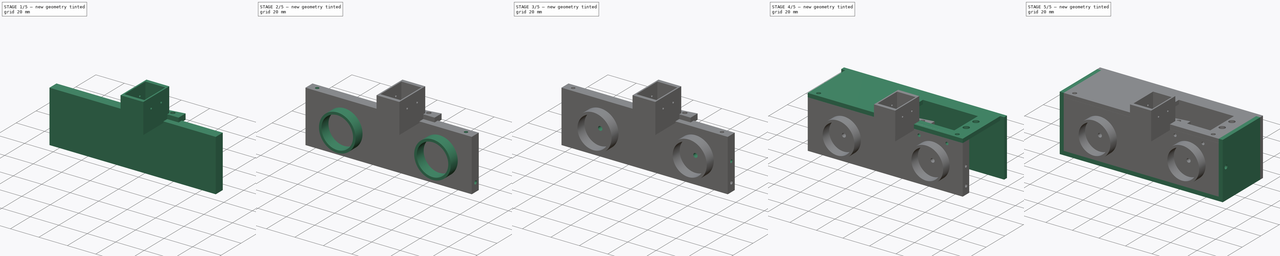
[diagram: build sequence overview — one tinted view per stage of 5, left to right]
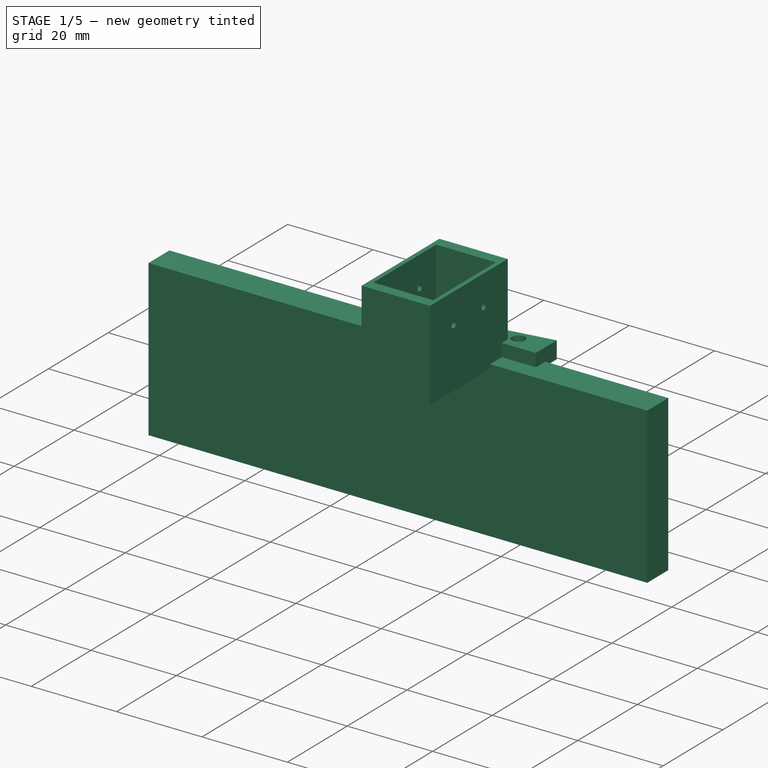
[diagram: stage 1 of 5 — iso view after this stage's code; geometry added in this stage tinted green]
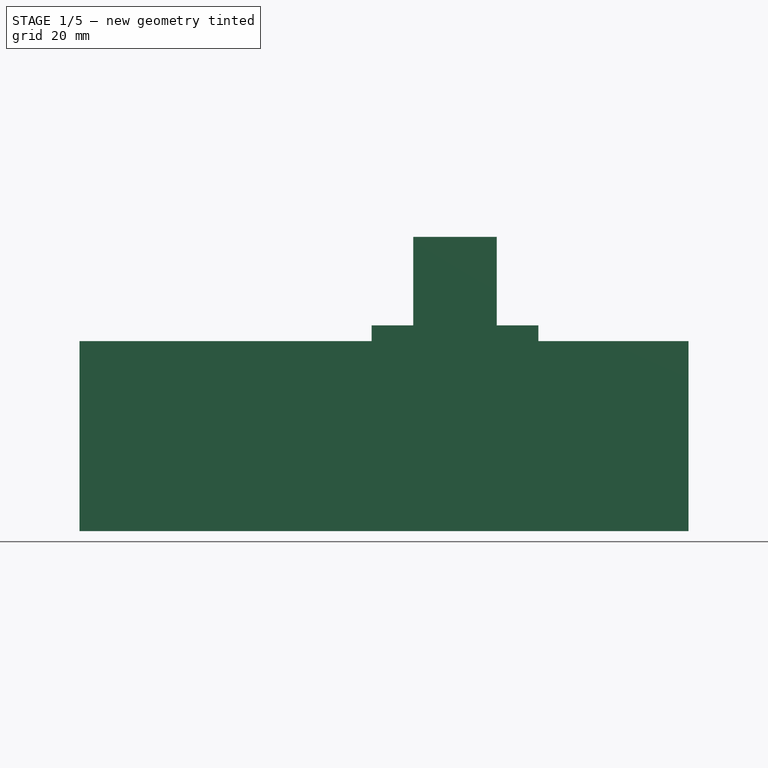
[diagram: stage 1 of 5 — front view after this stage's code; geometry added in this stage tinted green]
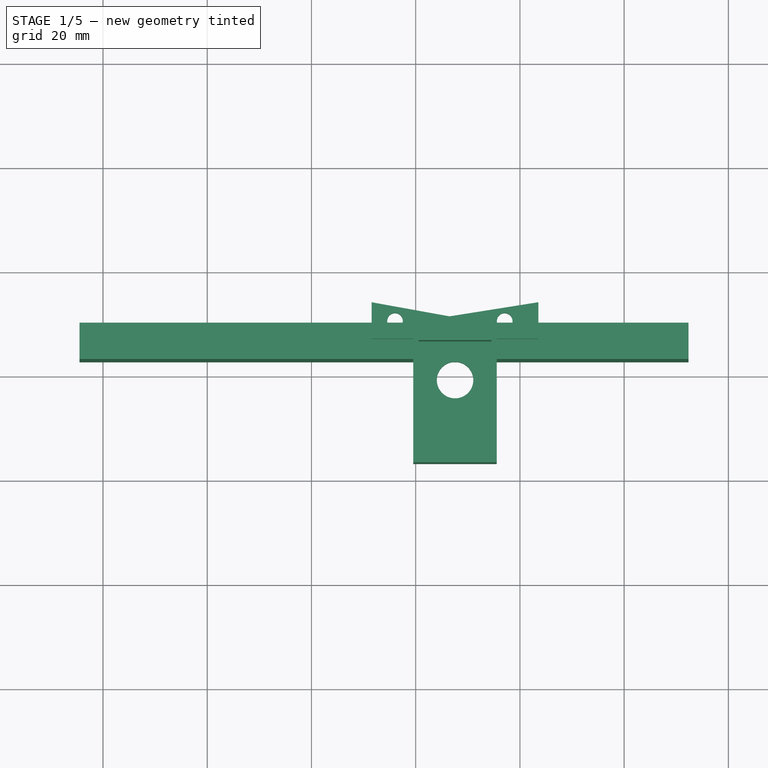
[diagram: stage 1 of 5 — top view after this stage's code; geometry added in this stage tinted green]
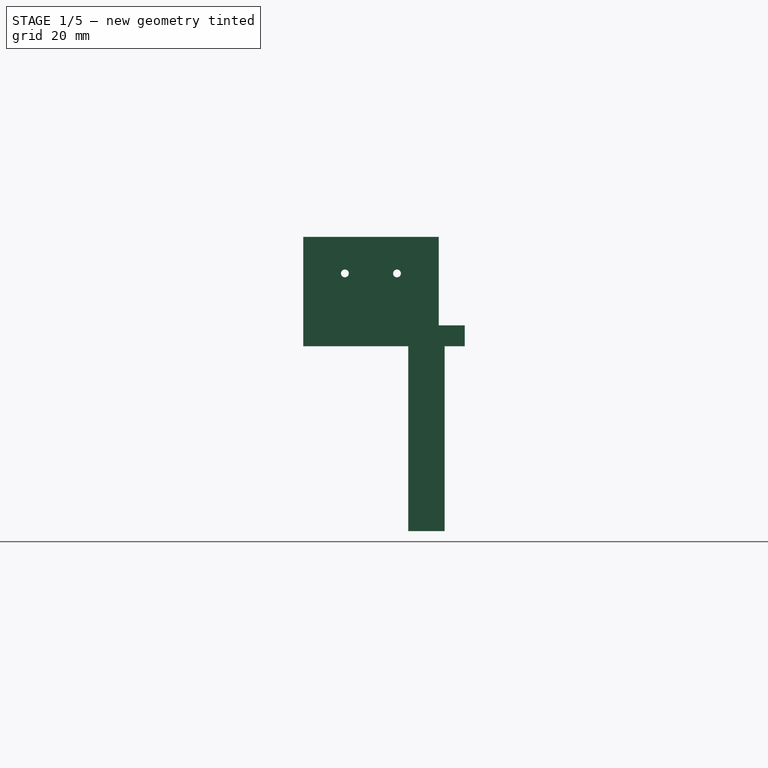
[diagram: stage 1 of 5 — right view after this stage's code; geometry added in this stage tinted green]
FCSTD DOCUMENT  (FreeCAD 0.21R33694 (Git))
Label: servo_box_full
License: All rights reserved
LicenseURL: http://en.wikipedia.org/wiki/All_rights_reserved
objects: Sketcher::SketchObject×22, PartDesign::Pad×11, PartDesign::Hole×10, PartDesign::Body×5, App::MeasureDistance×2, PartDesign::Pocket×1, App::Part×1
note: 71 computed .brp shape members not serialized (recipe doc carries the construction recipe); baked Part::Feature solids carry a one-line shape summary decoded from their .brp

FEATURE [App::MeasureDistance] Distance  label="Distance: 67,48 mm"
  Distance = 67.477
  P1 = (-37.7693,-15.2188,-17.7804)
  P2 = (29.7075,-15.2188,-17.661)
FEATURE [App::MeasureDistance] Distance001  label="Distance: 26,32 mm"
  Distance = 26.3166
  P1 = (-37.5966,-15.2188,-17.554)
  P2 = (-63.9131,-15.2188,-17.6073)
FEATURE [Sketcher::SketchObject] Sketch001  label="side_partition"
  FullyConstrained = false
  MapMode = 5
  Placement = pos=(0,-10.2188,-1e-15) rot=(0,0.707107,-0.707107;3.14159rad)
  sketch-geometry (4):
    g0: LineSegment StartX=-52.3398 StartY=35.4819 StartZ=0 EndX=64.5033 EndY=35.4819 EndZ=0
    g1: LineSegment StartX=-52.3398 StartY=-0.974658 StartZ=0 EndX=64.5033 EndY=-0.974658 EndZ=0
    g2: LineSegment StartX=64.5033 StartY=35.4819 StartZ=0 EndX=64.5033 EndY=-0.974658 EndZ=0
    g3: LineSegment StartX=-52.3398 StartY=35.4819 StartZ=0 EndX=-52.3398 EndY=-0.974658 EndZ=0
  constraints (8):
    c: Horizontal(g0)
    c: Horizontal(g1)
    c: Coincident(g2,g0)
    c: Coincident(g2,g1)
    c: Vertical(g2)
    c: Coincident(g3,g0)
    c: Coincident(g3,g1)
    c: Vertical(g3)
FEATURE [PartDesign::Pad] Pad001  label="side_partition001"
  Direction = (0,-1,-2e-16)
  Length = 7
  Length2 = 10
  Placement = pos=(0,-10.2188,-1e-15) rot=(0,0.707107,-0.707107;3.14159rad)
  Profile = -> Sketch001
  ReferenceAxis = -> Sketch001 [N_Axis]
  Type = 0
FEATURE [Sketcher::SketchObject] Sketch039  label="base"
  FullyConstrained = false
  MapMode = 5
  Support = -> [XY_Plane006]
  sketch-geometry (12):
    g0: LineSegment StartX=15.5352 StartY=-13.3626 StartZ=0 EndX=15.5352 EndY=-37.3626 EndZ=0
    g1: LineSegment StartX=15.5352 StartY=-37.3626 StartZ=0 EndX=-0.464761 EndY=-37.3626 EndZ=0
    g2: LineSegment StartX=-0.464761 StartY=-37.3626 StartZ=0 EndX=-0.464761 EndY=-13.3626 EndZ=0
    g3: Circle CenterX=-3.96812 CenterY=-9.94508 CenterZ=0 NormalX=0 NormalY=0 NormalZ=1 AngleXU=0 Radius=1.5
    g4: Circle CenterX=17.0748 CenterY=-9.94508 CenterZ=0 NormalX=0 NormalY=0 NormalZ=1 AngleXU=0 Radius=1.5
    g5: Circle CenterX=7.55557 CenterY=-21.3054 CenterZ=0 NormalX=0 NormalY=0 NormalZ=1 AngleXU=0 Radius=3.5
    g6: LineSegment StartX=-8.46476 StartY=-13.3626 StartZ=0 EndX=-0.464761 EndY=-13.3626 EndZ=0
    g7: LineSegment StartX=15.5352 StartY=-13.3626 StartZ=0 EndX=23.5352 EndY=-13.3626 EndZ=0
    g8: LineSegment StartX=-8.46476 StartY=-13.3626 StartZ=0 EndX=-8.46476 EndY=-6.36255 EndZ=0
    g9: LineSegment StartX=-8.46476 StartY=-6.36255 StartZ=0 EndX=6.47425 EndY=-9.07488 EndZ=0
    g10: LineSegment StartX=23.5352 StartY=-13.3626 StartZ=0 EndX=23.5352 EndY=-6.36255 EndZ=0
    g11: LineSegment StartX=6.47425 StartY=-9.07488 StartZ=0 EndX=23.5352 EndY=-6.36255 EndZ=0
  constraints (25):
    c: Coincident(g0,g1)
    c: Coincident(g1,g2)
    c: Horizontal(g1)
    c: Vertical(g0)
    c: Vertical(g2)
    c: Diameter(g3) = 3
    c: Diameter(g5) = 7
    c: Horizontal(g6)
    c: Distance(g1) = 16
    c: Coincident(g6,g2)
    c: Coincident(g7,g0)
    c: Horizontal(g7)
    c: Distance(g6) = 8
    c: Distance(g7) = 8
    c: Coincident(g8,g6)
    c: Vertical(g8)
    c: Distance(g8) = 7
    c: Coincident(g9,g8)
    c: Coincident(g10,g7)
    c: Vertical(g10)
    c: Distance(g10) = 7
    c: Coincident(g11,g9)
    c: Coincident(g11,g10)
    c: Distance(g2) = 24
    c: Distance(g0) = 24
FEATURE [PartDesign::Pad] Pad012  label="base_push"
  Direction = (0,0,1)
  Length = 4
  Length2 = 10
  Profile = -> Sketch039
  ReferenceAxis = -> Sketch039 [N_Axis]
  Type = 0
FEATURE [Sketcher::SketchObject] Sketch040  label="peregorodka"
  AttachmentOffset = pos=(0,-20,0) rot=(0,0,1;0rad)
  FullyConstrained = false
  MapMode = 5
  Placement = pos=(0,-20,4) rot=(0,0,1;0rad)
  Support = -> [Pad012]
  sketch-geometry (8):
    g0: LineSegment StartX=15.5428 StartY=8.63832 StartZ=0 EndX=15.5428 EndY=-17.3617 EndZ=0
    g1: LineSegment StartX=15.5428 StartY=-17.3617 StartZ=0 EndX=-0.457234 EndY=-17.3617 EndZ=0
    g2: LineSegment StartX=0.552107 StartY=6.09767 StartZ=0 EndX=14.5521 EndY=6.09767 EndZ=0
    g3: LineSegment StartX=14.5521 StartY=6.09767 StartZ=0 EndX=14.5521 EndY=-14.9023 EndZ=0
    g4: LineSegment StartX=14.5521 StartY=-14.9023 StartZ=0 EndX=0.552107 EndY=-14.9023 EndZ=0
    g5: LineSegment StartX=0.552107 StartY=-14.9023 StartZ=0 EndX=0.552107 EndY=6.09767 EndZ=0
    g6: LineSegment StartX=15.5428 StartY=8.63832 StartZ=0 EndX=-0.457234 EndY=8.63832 EndZ=0
    g7: LineSegment StartX=-0.457234 StartY=-17.3617 StartZ=0 EndX=-0.457234 EndY=8.63832 EndZ=0
  constraints (19):
    c: Coincident(g0,g1)
    c: Horizontal(g1)
    c: Vertical(g0)
    c: Distance(g1) = 16
    c: Coincident(g2,g3)
    c: Coincident(g3,g4)
    c: Coincident(g4,g5)
    c: Coincident(g5,g2)
    c: Horizontal(g2)
    c: Horizontal(g4)
    c: Vertical(g3)
    c: Vertical(g5)
    c: Distance(g2) = 14
    c: Distance(g5) = 21
    c: Coincident(g6,g0)
    c: Horizontal(g6)
    c: Coincident(g7,g1)
    c: Coincident(g7,g6)
    c: Vertical(g7)
FEATURE [PartDesign::Pad] Pad013
  BaseFeature = -> Pad012
  Direction = (0,0,1)
  Length = 17
  Length2 = 10
  Profile = -> Sketch040
  ReferenceAxis = -> Sketch040 [N_Axis]
  Type = 0
FEATURE [PartDesign::Body] Body  label="krepeg"
  Group = -> [Sketch001,Pad001,Sketch003,Pad002,Sketch004,Pad003,Sketch032,Hole,Sketch033,Hole012,Sketch034,Hole013,Sketch035,Hole014,Sketch036,Hole015,Sketch037,Hole016,Sketch038,Hole017,Sketch043,Hole019]
  Origin = -> Origin003
  Tip = -> Hole019
FEATURE [App::Part] Part
  Group = -> [Body,Body002,Body003,Body001]
  Origin = -> Origin002
FEATURE [PartDesign::Hole] Hole020
  BaseFeature = -> Pad013
  CustomThreadClearance = 0
  Depth = 25
  DepthType = 0
  Diameter = 1.5
  DrillForDepth = false
  DrillPoint = 1
  DrillPointAngle = 118
  HoleCutCountersinkAngle = 90
  HoleCutCustomValues = false
  HoleCutDepth = 0
  HoleCutDiameter = 6.1
  HoleCutType = 0
  ModelThread = false
  Profile = -> Sketch041
  Tapered = false
  TaperedAngle = 90
  ThreadClass = 0
  ThreadDepth = 25
  ThreadDepthType = 0
  ThreadDirection = 0
  ThreadFit = 0
  ThreadSize = 0
  ThreadType = 0
  Threaded = false
  UseCustomThreadClearance = false
FEATURE [PartDesign::Body] Body004  label="stopper"
  Group = -> [Sketch039,Pad012,Sketch040,Sketch041,Pad013,Hole020]
  Origin = -> Origin006
  Placement = pos=(36.5,-17.3,-12.4) rot=(0,0.707107,-0.707107;3.14159rad)
  Tip = -> Hole020
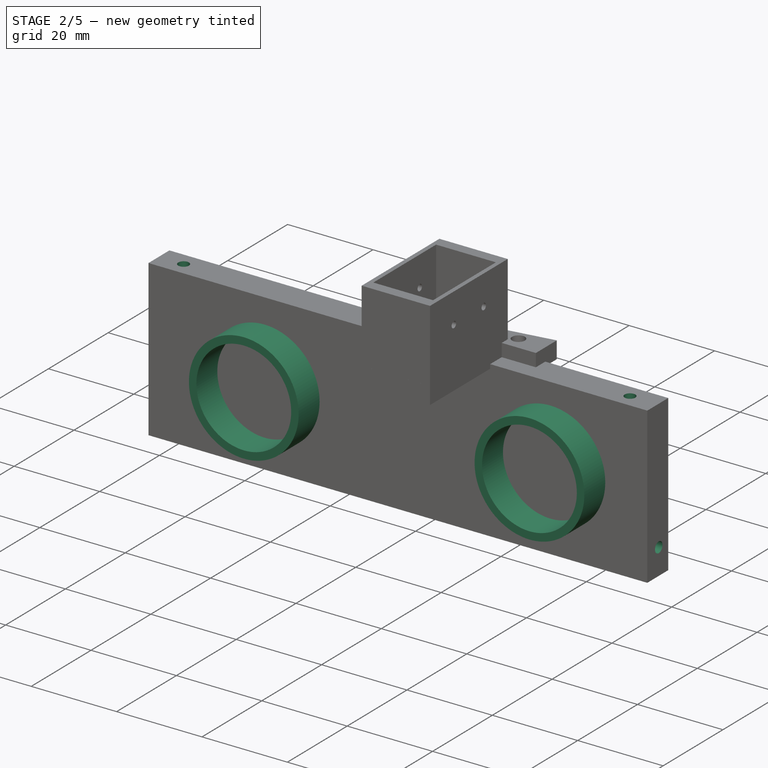
[diagram: stage 2 of 5 — iso view after this stage's code; geometry added in this stage tinted green]
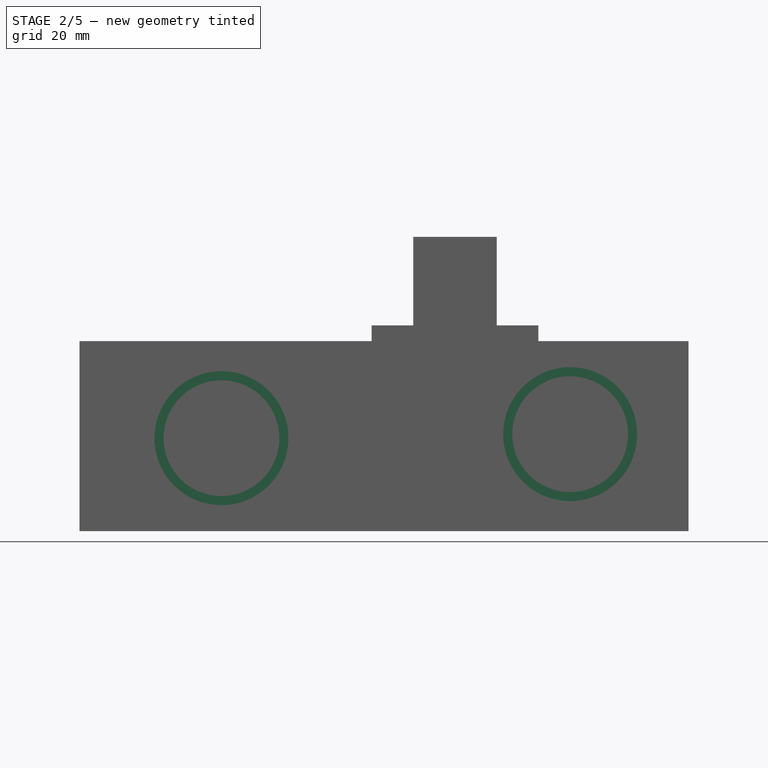
[diagram: stage 2 of 5 — front view after this stage's code; geometry added in this stage tinted green]
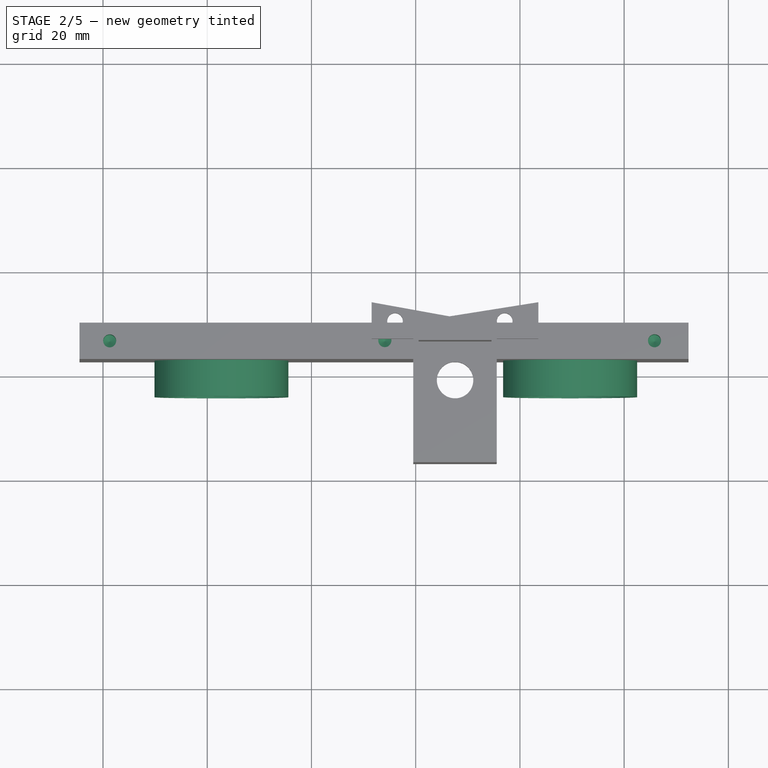
[diagram: stage 2 of 5 — top view after this stage's code; geometry added in this stage tinted green]
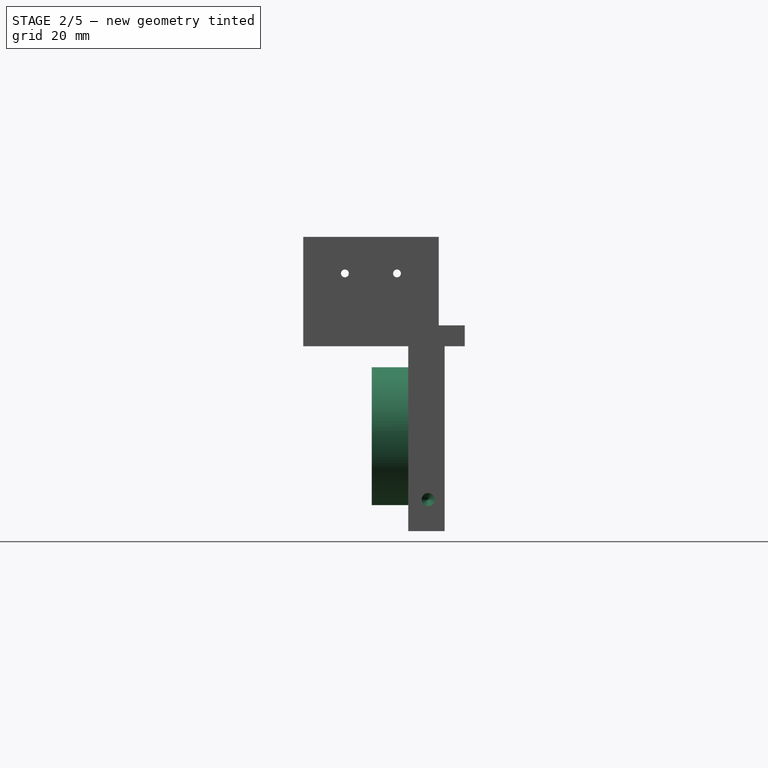
[diagram: stage 2 of 5 — right view after this stage's code; geometry added in this stage tinted green]
FEATURE [Sketcher::SketchObject] Sketch003  label="ring_right"
  FullyConstrained = false
  MapMode = 5
  Placement = pos=(0,-17.2188,-3.9e-15) rot=(0,0.707107,-0.707107;3.14159rad)
  Support = -> [Pad001]
  sketch-geometry (2):
    g0: Circle CenterX=-29.6369 CenterY=16.867 CenterZ=0 NormalX=0 NormalY=0 NormalZ=1 AngleXU=0 Radius=11.1
    g1: Circle CenterX=-29.6369 CenterY=16.867 CenterZ=0 NormalX=0 NormalY=0 NormalZ=1 AngleXU=0 Radius=12.85
  constraints (3):
    c: Radius(g0) = 11.1
    c: Coincident(g1,g0)
    c: Diameter(g1) = 25.7
FEATURE [PartDesign::Pad] Pad002  label="right_ring"
  BaseFeature = -> Pad001
  Direction = (-1e-16,-1,-2e-16)
  Length = 7
  Length2 = 10
  Placement = pos=(0,-10.2188,-1e-15) rot=(0,0.707107,-0.707107;3.14159rad)
  Profile = -> Sketch003
  ReferenceAxis = -> Sketch003 [N_Axis]
  Type = 0
FEATURE [Sketcher::SketchObject] Sketch004  label="ring_Left"
  FullyConstrained = false
  MapMode = 5
  Placement = pos=(0,-17.2188,-3.9e-15) rot=(0,0.707107,-0.707107;3.14159rad)
  Support = -> [Pad001]
  sketch-geometry (2):
    g0: Circle CenterX=37.2735 CenterY=17.6331 CenterZ=0 NormalX=0 NormalY=0 NormalZ=1 AngleXU=0 Radius=11.1
    g1: Circle CenterX=37.2735 CenterY=17.6331 CenterZ=0 NormalX=0 NormalY=0 NormalZ=1 AngleXU=0 Radius=12.85
  constraints (3):
    c: Radius(g0) = 11.1
    c: Coincident(g1,g0)
    c: Diameter(g1) = 25.7
FEATURE [PartDesign::Pad] Pad003  label="left_ring"
  BaseFeature = -> Pad002
  Direction = (-1e-16,-1,-2e-16)
  Length = 7
  Length2 = 10
  Placement = pos=(0,-10.2188,-1e-15) rot=(0,0.707107,-0.707107;3.14159rad)
  Profile = -> Sketch004
  ReferenceAxis = -> Sketch004 [N_Axis]
  Type = 0
FEATURE [Sketcher::SketchObject] Sketch031
  FullyConstrained = false
  MapMode = 5
  Placement = pos=(40,15.1692,4) rot=(0,-0.707107,0.707107;3.14159rad)
  Support = -> [Pad011]
  sketch-geometry (4):
    g0: Circle CenterX=51.4652 CenterY=33.2461 CenterZ=0 NormalX=0 NormalY=0 NormalZ=1 AngleXU=0 Radius=1.5
    g1: Circle CenterX=98.6379 CenterY=33.1456 CenterZ=0 NormalX=0 NormalY=0 NormalZ=1 AngleXU=0 Radius=1.5
    g2: Circle CenterX=98.589 CenterY=10.1588 CenterZ=0 NormalX=0 NormalY=0 NormalZ=1 AngleXU=0 Radius=1.5
    g3: Circle CenterX=51.6046 CenterY=10.3128 CenterZ=0 NormalX=0 NormalY=0 NormalZ=1 AngleXU=0 Radius=1.5
  constraints (3):
    c: Diameter(g0) = 3
    c: Equal(g0,g1) = 3
    c: Equal(g0,g3) = 3
FEATURE [Sketcher::SketchObject] Sketch032  label="top_holes"
  FullyConstrained = false
  MapMode = 5
  Placement = pos=(0,-10.2188,0.974658) rot=(0,0,1;3.14159rad)
  sketch-geometry (3):
    g0: Circle CenterX=-45.824 CenterY=3.48971 CenterZ=0 NormalX=0 NormalY=0 NormalZ=1 AngleXU=0 Radius=1.25
    g1: Circle CenterX=5.92399 CenterY=3.45807 CenterZ=0 NormalX=0 NormalY=0 NormalZ=1 AngleXU=0 Radius=1.25
    g2: Circle CenterX=58.7177 CenterY=3.50816 CenterZ=0 NormalX=0 NormalY=0 NormalZ=1 AngleXU=0 Radius=1.25
  constraints (3):
    c: Diameter(g0) = 2.5
    c: Diameter(g1) = 2.5
    c: Diameter(g2) = 2.5
FEATURE [PartDesign::Hole] Hole  label="top_holes001"
  BaseFeature = -> Pad003
  CustomThreadClearance = 0
  Depth = 7
  DepthType = 0
  Diameter = 2.5
  DrillForDepth = false
  DrillPoint = 1
  DrillPointAngle = 118
  HoleCutCountersinkAngle = 90
  HoleCutCustomValues = false
  HoleCutDepth = 0
  HoleCutDiameter = 6.1
  HoleCutType = 0
  ModelThread = false
  Placement = pos=(0,-10.2188,-1e-15) rot=(0,0.707107,-0.707107;3.14159rad)
  Profile = -> Sketch032
  Tapered = false
  TaperedAngle = 90
  ThreadClass = 0
  ThreadDepth = 7
  ThreadDepthType = 0
  ThreadDirection = 0
  ThreadFit = 0
  ThreadSize = 0
  ThreadType = 0
  Threaded = false
  UseCustomThreadClearance = false
FEATURE [Sketcher::SketchObject] Sketch033  label="side_hole"
  FullyConstrained = false
  MapMode = 5
  Placement = pos=(52.3398,-10.2188,-5.7e-15) rot=(0.707107,0,0.707107;3.14159rad)
  Support = -> [Hole]
  sketch-geometry (1):
    g0: Circle CenterX=-29.419 CenterY=3.16378 CenterZ=0 NormalX=0 NormalY=0 NormalZ=1 AngleXU=0 Radius=1.25
  constraints (1):
    c: Diameter(g0) = 2.5
FEATURE [PartDesign::Hole] Hole012
  BaseFeature = -> Hole
  CustomThreadClearance = 0
  Depth = 7
  DepthType = 0
  Diameter = 2.5
  DrillForDepth = false
  DrillPoint = 1
  DrillPointAngle = 118
  HoleCutCountersinkAngle = 90
  HoleCutCustomValues = false
  HoleCutDepth = 0
  HoleCutDiameter = 6.1
  HoleCutType = 0
  ModelThread = false
  Placement = pos=(0,-10.2188,-1e-15) rot=(0,0.707107,-0.707107;3.14159rad)
  Profile = -> Sketch033
  Tapered = false
  TaperedAngle = 90
  ThreadClass = 0
  ThreadDepth = 7
  ThreadDepthType = 0
  ThreadDirection = 0
  ThreadFit = 0
  ThreadSize = 0
  ThreadType = 0
  Threaded = false
  UseCustomThreadClearance = false
FEATURE [Sketcher::SketchObject] Sketch034  label="right_side_hole"
  FullyConstrained = false
  MapMode = 5
  Placement = pos=(-64.5033,-10.2188,4.8e-15) rot=(-0.707107,0,0.707107;3.14159rad)
  Support = -> [Hole012]
  sketch-geometry (1):
    g0: Circle CenterX=29.4708 CenterY=3.10503 CenterZ=0 NormalX=0 NormalY=0 NormalZ=1 AngleXU=0 Radius=1.25
  constraints (1):
    c: Diameter(g0) = 2.5
FEATURE [PartDesign::Hole] Hole013
  BaseFeature = -> Hole012
  CustomThreadClearance = 0
  Depth = 7
  DepthType = 0
  Diameter = 2.5
  DrillForDepth = false
  DrillPoint = 1
  DrillPointAngle = 118
  HoleCutCountersinkAngle = 90
  HoleCutCustomValues = false
  HoleCutDepth = 0
  HoleCutDiameter = 6.1
  HoleCutType = 0
  ModelThread = false
  Placement = pos=(0,-10.2188,-1e-15) rot=(0,0.707107,-0.707107;3.14159rad)
  Profile = -> Sketch034
  Tapered = false
  TaperedAngle = 90
  ThreadClass = 0
  ThreadDepth = 7
  ThreadDepthType = 0
  ThreadDirection = 0
  ThreadFit = 0
  ThreadSize = 0
  ThreadType = 0
  Threaded = false
  UseCustomThreadClearance = false
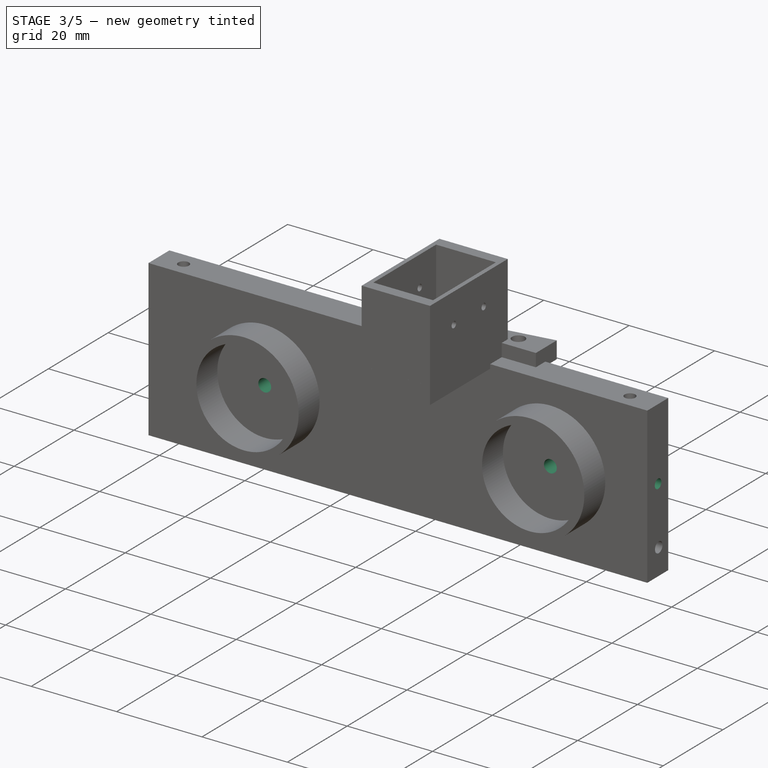
[diagram: stage 3 of 5 — iso view after this stage's code; geometry added in this stage tinted green]
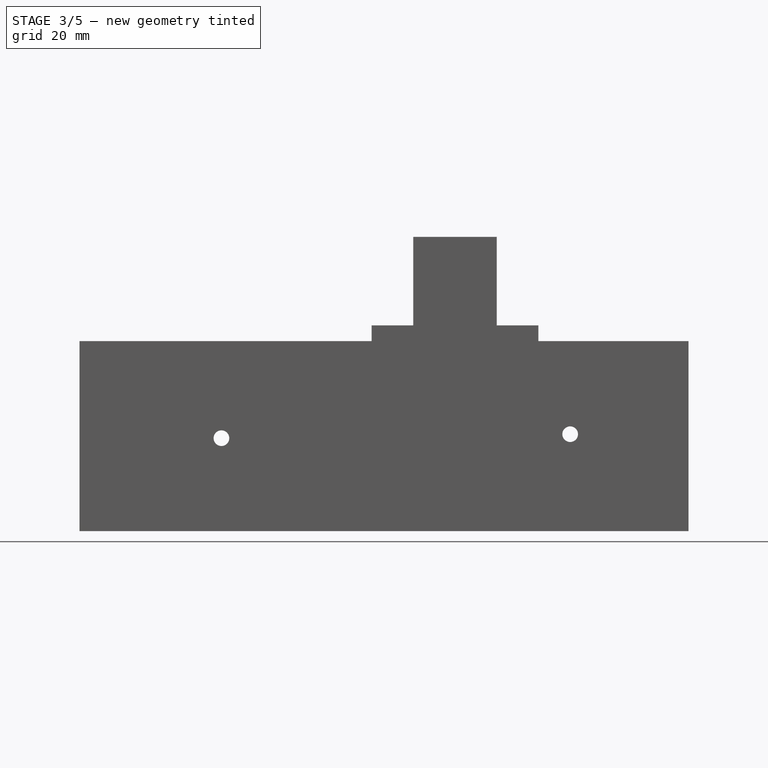
[diagram: stage 3 of 5 — front view after this stage's code; geometry added in this stage tinted green]
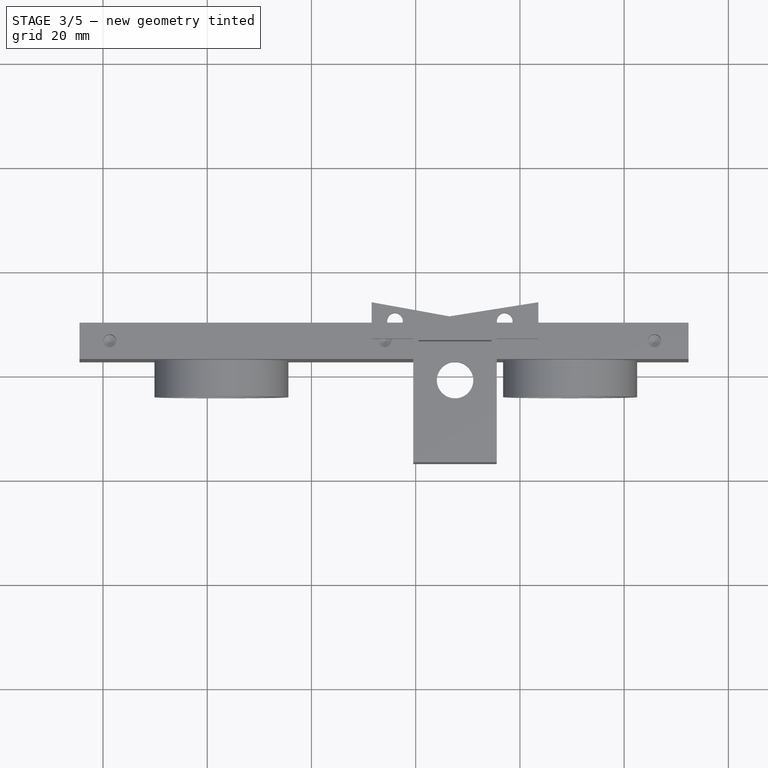
[diagram: stage 3 of 5 — top view after this stage's code; geometry added in this stage tinted green]
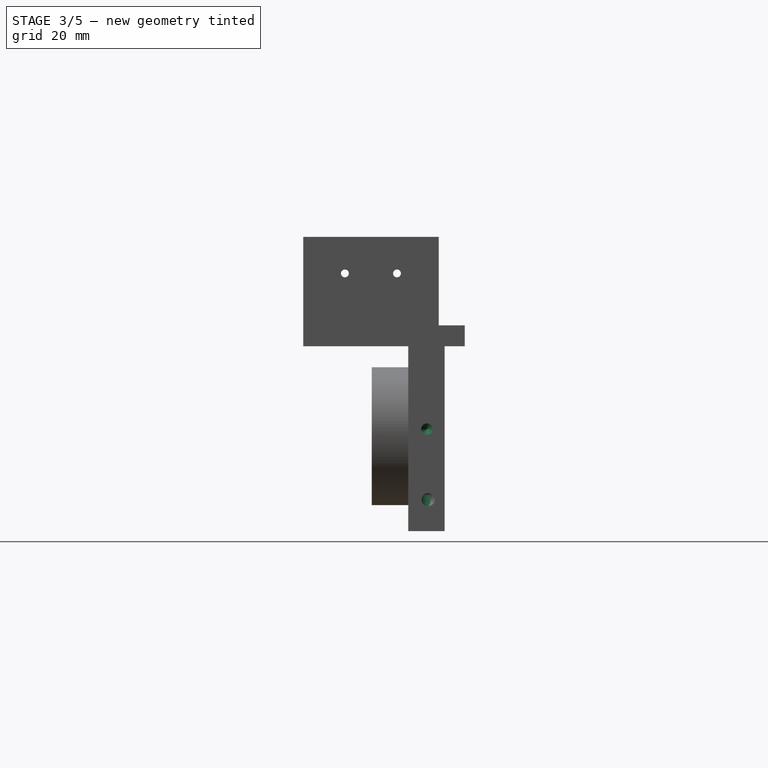
[diagram: stage 3 of 5 — right view after this stage's code; geometry added in this stage tinted green]
FEATURE [PartDesign::Body] Body003  label="back_krishka"
  Group = -> [Sketch020,Pad010,Sketch030,Pad011,Sketch031,Hole011]
  Origin = -> Origin005
  Tip = -> Hole011
FEATURE [PartDesign::Hole] Hole014
  BaseFeature = -> Hole013
  CustomThreadClearance = 0
  Depth = 7
  DepthType = 0
  Diameter = 2.5
  DrillForDepth = false
  DrillPoint = 1
  DrillPointAngle = 118
  HoleCutCountersinkAngle = 90
  HoleCutCustomValues = false
  HoleCutDepth = 0
  HoleCutDiameter = 6.1
  HoleCutType = 0
  ModelThread = false
  Placement = pos=(0,-10.2188,-1e-15) rot=(0,0.707107,-0.707107;3.14159rad)
  Profile = -> Sketch035
  Tapered = false
  TaperedAngle = 90
  ThreadClass = 0
  ThreadDepth = 7
  ThreadDepthType = 0
  ThreadDirection = 0
  ThreadFit = 0
  ThreadSize = 0
  ThreadType = 0
  Threaded = false
  UseCustomThreadClearance = false
FEATURE [Sketcher::SketchObject] Sketch036  label="right_ring_hole"
  FullyConstrained = false
  MapMode = 5
  Placement = pos=(0,-17.2188,-3.9e-15) rot=(0,0.707107,-0.707107;3.14159rad)
  Support = -> [Hole014]
  sketch-geometry (1):
    g0: Circle CenterX=-29.6406 CenterY=16.8712 CenterZ=0 NormalX=0 NormalY=0 NormalZ=1 AngleXU=0 Radius=1.5
  constraints (1):
    c: Diameter(g0) = 3
FEATURE [PartDesign::Hole] Hole015
  BaseFeature = -> Hole014
  CustomThreadClearance = 0
  Depth = 25
  DepthType = 0
  Diameter = 3
  DrillForDepth = false
  DrillPoint = 1
  DrillPointAngle = 118
  HoleCutCountersinkAngle = 90
  HoleCutCustomValues = false
  HoleCutDepth = 0
  HoleCutDiameter = 6.1
  HoleCutType = 0
  ModelThread = false
  Placement = pos=(0,-10.2188,-1e-15) rot=(0,0.707107,-0.707107;3.14159rad)
  Profile = -> Sketch036
  Tapered = false
  TaperedAngle = 90
  ThreadClass = 0
  ThreadDepth = 25
  ThreadDepthType = 0
  ThreadDirection = 0
  ThreadFit = 0
  ThreadSize = 0
  ThreadType = 0
  Threaded = false
  UseCustomThreadClearance = false
FEATURE [Sketcher::SketchObject] Sketch037  label="left_ring_hole"
  FullyConstrained = false
  MapMode = 5
  Placement = pos=(0,-17.2188,-3.9e-15) rot=(0,0.707107,-0.707107;3.14159rad)
  Support = -> [Hole015]
  sketch-geometry (1):
    g0: Circle CenterX=37.2723 CenterY=17.637 CenterZ=0 NormalX=0 NormalY=0 NormalZ=1 AngleXU=0 Radius=1.5
  constraints (1):
    c: Diameter(g0) = 3
FEATURE [PartDesign::Hole] Hole016
  BaseFeature = -> Hole015
  CustomThreadClearance = 0
  Depth = 25
  DepthType = 0
  Diameter = 3
  DrillForDepth = false
  DrillPoint = 1
  DrillPointAngle = 118
  HoleCutCountersinkAngle = 90
  HoleCutCustomValues = false
  HoleCutDepth = 0
  HoleCutDiameter = 6.1
  HoleCutType = 0
  ModelThread = false
  Placement = pos=(0,-10.2188,-1e-15) rot=(0,0.707107,-0.707107;3.14159rad)
  Profile = -> Sketch037
  Tapered = false
  TaperedAngle = 90
  ThreadClass = 0
  ThreadDepth = 25
  ThreadDepthType = 0
  ThreadDirection = 0
  ThreadFit = 0
  ThreadSize = 0
  ThreadType = 0
  Threaded = false
  UseCustomThreadClearance = false
FEATURE [Sketcher::SketchObject] Sketch038  label="korobka_junk_right_hole"
  FullyConstrained = false
  MapMode = 5
  Placement = pos=(52.3398,-10.2188,-5.7e-15) rot=(0.707107,0,0.707107;3.14159rad)
  Support = -> [Hole016]
  sketch-geometry (1):
    g0: Circle CenterX=-15.8912 CenterY=3.39296 CenterZ=0 NormalX=0 NormalY=0 NormalZ=1 AngleXU=0 Radius=1.1
  constraints (1):
    c: Diameter(g0) = 2.2
FEATURE [PartDesign::Hole] Hole017
  BaseFeature = -> Hole016
  CustomThreadClearance = 0
  Depth = 8
  DepthType = 0
  Diameter = 2.2
  DrillForDepth = false
  DrillPoint = 1
  DrillPointAngle = 118
  HoleCutCountersinkAngle = 90
  HoleCutCustomValues = false
  HoleCutDepth = 0
  HoleCutDiameter = 6.1
  HoleCutType = 0
  ModelThread = false
  Placement = pos=(0,-10.2188,-1e-15) rot=(0,0.707107,-0.707107;3.14159rad)
  Profile = -> Sketch038
  Tapered = false
  TaperedAngle = 90
  ThreadClass = 0
  ThreadDepth = 8
  ThreadDepthType = 0
  ThreadDirection = 0
  ThreadFit = 0
  ThreadSize = 0
  ThreadType = 0
  Threaded = false
  UseCustomThreadClearance = false
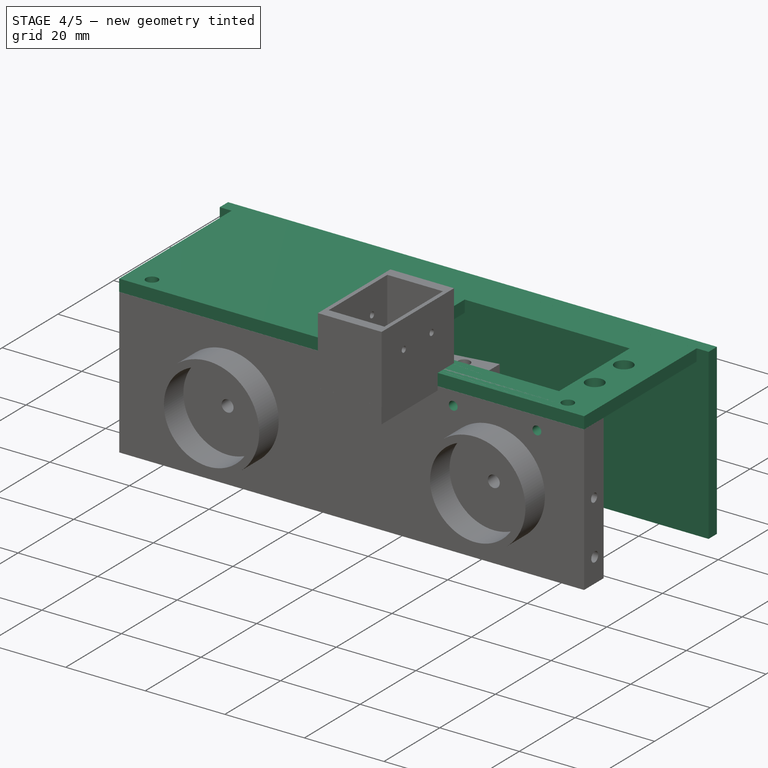
[diagram: stage 4 of 5 — iso view after this stage's code; geometry added in this stage tinted green]
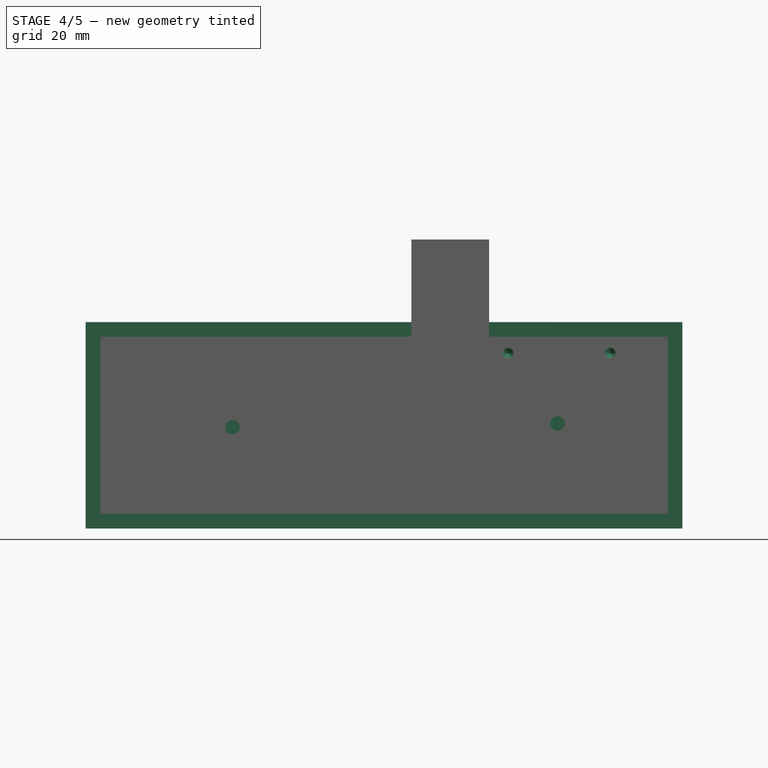
[diagram: stage 4 of 5 — front view after this stage's code; geometry added in this stage tinted green]
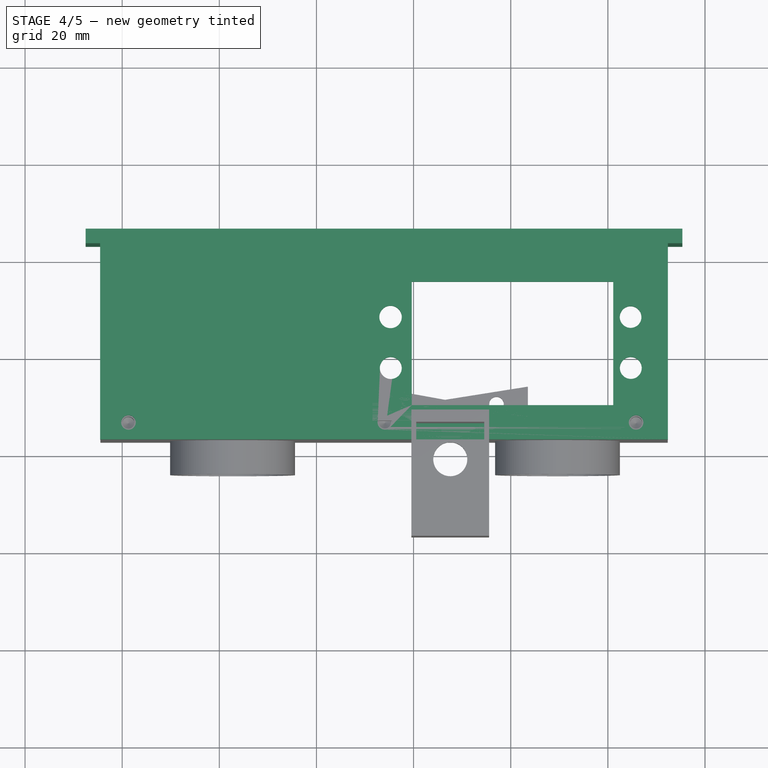
[diagram: stage 4 of 5 — top view after this stage's code; geometry added in this stage tinted green]
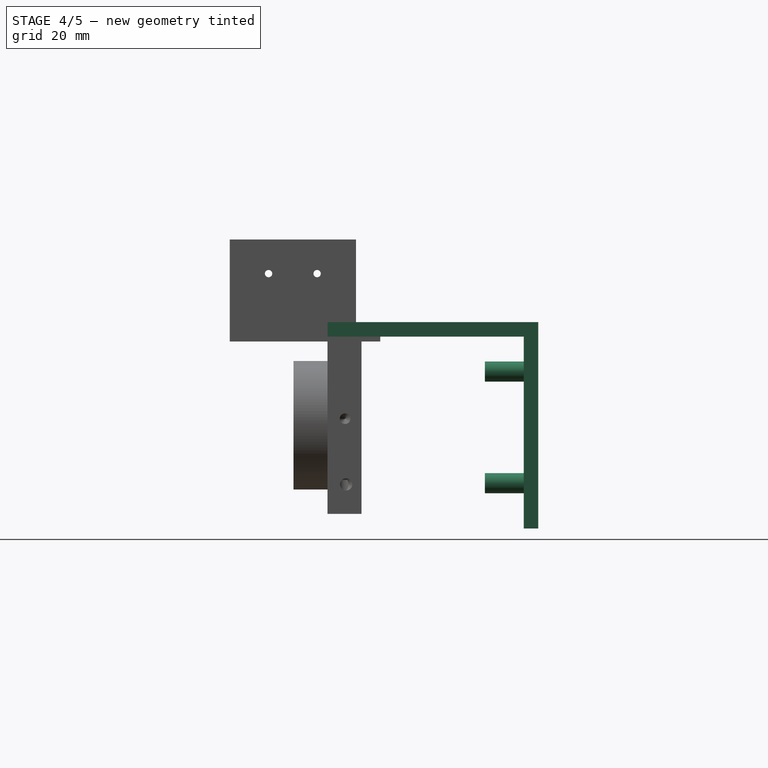
[diagram: stage 4 of 5 — right view after this stage's code; geometry added in this stage tinted green]
FEATURE [Sketcher::SketchObject] Sketch  label="servo_support"
  FullyConstrained = false
  MapMode = 5
  Placement = pos=(40,-7,4) rot=(0,0,1;3.14159rad)
  sketch-geometry (16):
    g0: LineSegment StartX=-1.10389 StartY=-22.2291 StartZ=0 EndX=-1.10389 EndY=3.16087 EndZ=0
    g1: LineSegment StartX=-1.10389 StartY=3.16087 StartZ=0 EndX=40.3861 EndY=3.16087 EndZ=0
    g2: LineSegment StartX=40.3861 StartY=3.16087 StartZ=0 EndX=40.3861 EndY=-22.2291 EndZ=0
    g3: LineSegment StartX=104.535 StartY=-30.1692 StartZ=0 EndX=104.535 EndY=10.2171 EndZ=0
    g4: LineSegment StartX=104.535 StartY=10.2171 StartZ=0 EndX=-12.3642 EndY=10.2171 EndZ=0
    g5: LineSegment StartX=-12.3642 StartY=10.2171 StartZ=0 EndX=-12.3642 EndY=-22.1692 EndZ=0
    g6: Circle CenterX=-4.72671 CenterY=-4.48337 CenterZ=0 NormalX=0 NormalY=0 NormalZ=1 AngleXU=0 Radius=2.24959
    g7: Circle CenterX=-4.6859 CenterY=-14.97 CenterZ=0 NormalX=0 NormalY=0 NormalZ=1 AngleXU=0 Radius=2.22848
    g8: Circle CenterX=44.6937 CenterY=-4.4734 CenterZ=0 NormalX=0 NormalY=0 NormalZ=1 AngleXU=0 Radius=2.25809
    g9: Circle CenterX=44.7434 CenterY=-14.9896 CenterZ=0 NormalX=0 NormalY=0 NormalZ=1 AngleXU=0 Radius=2.3098
    g10: Circle CenterX=-5.81017 CenterY=6.72376 CenterZ=0 NormalX=0 NormalY=0 NormalZ=1 AngleXU=0 Radius=1.5
    g11: Circle CenterX=45.9248 CenterY=6.70679 CenterZ=0 NormalX=0 NormalY=0 NormalZ=1 AngleXU=0 Radius=1.5
    g12: LineSegment StartX=-1.10389 StartY=-22.2291 StartZ=0 EndX=40.3861 EndY=-22.2291 EndZ=0
    g13: LineSegment StartX=-12.3642 StartY=-22.1692 StartZ=0 EndX=-12.3642 EndY=-30.1692 EndZ=0
    g14: Circle CenterX=98.7128 CenterY=6.73161 CenterZ=0 NormalX=0 NormalY=0 NormalZ=1 AngleXU=0 Radius=1.5
    g15: LineSegment StartX=-12.3642 StartY=-30.1692 StartZ=0 EndX=104.535 EndY=-30.1692 EndZ=0
  constraints (24):
    c: Vertical(g0)
    c: Coincident(g1,g0)
    c: Horizontal(g1)
    c: Coincident(g2,g1)
    c: Vertical(g2)
    c: Vertical(g3)
    c: Coincident(g4,g3)
    c: Horizontal(g4)
    c: Vertical(g5)
    c: Radius(g10) = 1.5
    c: Equal(g10,g11) = 3
    c: Coincident(g12,g0)
    c: Coincident(g12,g2)
    c: Horizontal(g12)
    c: Coincident(g13,g5)
    c: Vertical(g13)
    c: Distance(g13) = 8
    c: Distance(g0) = 25.39
    c: Coincident(g15,g13)
    c: Horizontal(g15)
    c: Coincident(g5,g4)
    c: Distance(g12) = 41.49
    c: Coincident(g15,g3)
    c: Radius(g14) = 1.5
FEATURE [PartDesign::Pad] Pad
  Direction = (0,0,1)
  Length = 3
  Length2 = 10
  Placement = pos=(40,-7,4) rot=(0,0,1;3.14159rad)
  Profile = -> Sketch
  ReferenceAxis = -> Sketch [N_Axis]
  Reversed = true
  Type = 0
FEATURE [PartDesign::Body] Body002  label="top_krishka"
  Group = -> [Sketch023,Pad009]
  Origin = -> Origin004
  Tip = -> Pad009
FEATURE [PartDesign::Pad] Pad010
  Direction = (0,1,-2e-16)
  Length = 3
  Length2 = 10
  Placement = pos=(40,23.1692,4) rot=(0,0.707107,0.707107;3.14159rad)
  Profile = -> Sketch020
  ReferenceAxis = -> Sketch020 [N_Axis]
  Type = 0
FEATURE [Sketcher::SketchObject] Sketch030  label="esp32_side"
  FullyConstrained = false
  MapMode = 5
  Placement = pos=(40,23.1692,4) rot=(0,0.707107,-0.707107;3.14159rad)
  sketch-geometry (4):
    g0: Circle CenterX=98.602 CenterY=33.1055 CenterZ=0 NormalX=0 NormalY=0 NormalZ=1 AngleXU=0 Radius=2
    g1: Circle CenterX=98.5991 CenterY=10.1055 CenterZ=0 NormalX=0 NormalY=0 NormalZ=1 AngleXU=0 Radius=2
    g2: Circle CenterX=51.4881 CenterY=33.2579 CenterZ=0 NormalX=0 NormalY=0 NormalZ=1 AngleXU=0 Radius=2
    g3: Circle CenterX=51.5994 CenterY=10.2581 CenterZ=0 NormalX=0 NormalY=0 NormalZ=1 AngleXU=0 Radius=2
  constraints (7):
    c: Diameter(g0) = 4
    c: Equal(g0,g1) = 5
    c: Distance(g0,g1) = 23
    c: Equal(g0,g2) = 5
    c: Equal(g2,g3) = 5
    c: Distance(g2,g3) = 23
    c: Distance(g1,g3) = 47
FEATURE [PartDesign::Pad] Pad011
  BaseFeature = -> Pad010
  Direction = (-1e-16,-1,2e-16)
  Length = 8
  Length2 = 10
  Placement = pos=(40,23.1692,4) rot=(0,0.707107,0.707107;3.14159rad)
  Profile = -> Sketch030
  ReferenceAxis = -> Sketch030 [N_Axis]
  Type = 0
FEATURE [PartDesign::Body] Body001  label="korobka"
  Group = -> [Sketch,Pad,Sketch009,Pad004,Sketch010,Sketch012,Pad008,Pocket]
  Origin = -> Origin
  Tip = -> Pocket
FEATURE [PartDesign::Hole] Hole011
  BaseFeature = -> Pad011
  CustomThreadClearance = 0
  Depth = 5
  DepthType = 0
  Diameter = 2.5
  DrillForDepth = false
  DrillPoint = 1
  DrillPointAngle = 118
  HoleCutCountersinkAngle = 90
  HoleCutCustomValues = false
  HoleCutDepth = 0
  HoleCutDiameter = 6.1
  HoleCutType = 0
  ModelThread = false
  Placement = pos=(40,23.1692,4) rot=(0,0.707107,0.707107;3.14159rad)
  Profile = -> Sketch031
  Tapered = false
  TaperedAngle = 90
  ThreadClass = 0
  ThreadDepth = 5
  ThreadDepthType = 0
  ThreadDirection = 0
  ThreadFit = 0
  ThreadSize = 0
  ThreadType = 0
  Threaded = false
  UseCustomThreadClearance = false
FEATURE [Sketcher::SketchObject] Sketch041  label="back_holes"
  AttachmentOffset = pos=(2,0,0) rot=(0,0,1;0rad)
  FullyConstrained = false
  MapMode = 5
  Placement = pos=(-0.457234,-2,0) rot=(0.57735,-0.57735,-0.57735;2.0944rad)
  Support = -> [Pad013]
  sketch-geometry (2):
    g0: Circle CenterX=17.3661 CenterY=13.9796 CenterZ=0 NormalX=0 NormalY=0 NormalZ=1 AngleXU=0 Radius=1.25
    g1: Circle CenterX=27.3661 CenterY=13.9754 CenterZ=0 NormalX=0 NormalY=0 NormalZ=1 AngleXU=0 Radius=1.25
  constraints (3):
    c: Diameter(g0) = 2.5
    c: Equal(g0,g1) = 2.5
    c: Distance(g1,g0) = 10
FEATURE [Sketcher::SketchObject] Sketch043  label="stopper_holes"
  FullyConstrained = false
  MapMode = 5
  Placement = pos=(0,-17.2188,-3.9e-15) rot=(0,0.707107,-0.707107;3.14159rad)
  Support = -> [Hole017]
  sketch-geometry (2):
    g0: Circle CenterX=-40.4838 CenterY=2.40684 CenterZ=0 NormalX=0 NormalY=0 NormalZ=1 AngleXU=0 Radius=1.1
    g1: Circle CenterX=-19.445 CenterY=2.43601 CenterZ=0 NormalX=0 NormalY=0 NormalZ=1 AngleXU=0 Radius=1.1
  constraints (2):
    c: Diameter(g0) = 2.2
    c: Diameter(g1) = 2.2
FEATURE [PartDesign::Hole] Hole019
  BaseFeature = -> Hole017
  CustomThreadClearance = 0
  Depth = 5
  DepthType = 0
  Diameter = 2.2
  DrillForDepth = false
  DrillPoint = 1
  DrillPointAngle = 118
  HoleCutCountersinkAngle = 90
  HoleCutCustomValues = false
  HoleCutDepth = 0
  HoleCutDiameter = 6.1
  HoleCutType = 0
  ModelThread = false
  Placement = pos=(0,-10.2188,-1e-15) rot=(0,0.707107,-0.707107;3.14159rad)
  Profile = -> Sketch043
  Tapered = false
  TaperedAngle = 90
  ThreadClass = 0
  ThreadDepth = 5
  ThreadDepthType = 0
  ThreadDirection = 0
  ThreadFit = 0
  ThreadSize = 0
  ThreadType = 0
  Threaded = false
  UseCustomThreadClearance = false
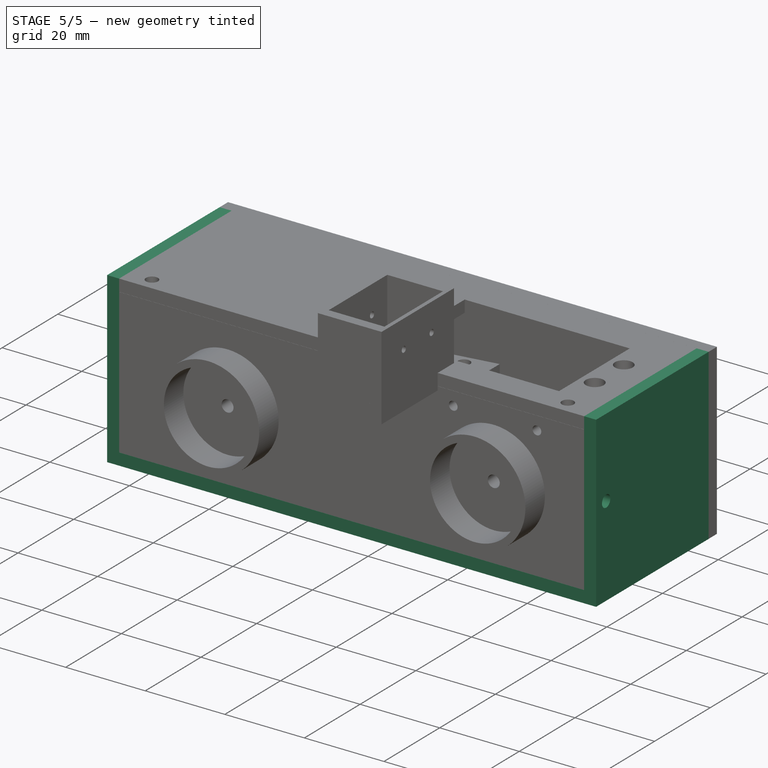
[diagram: stage 5 of 5 — iso view after this stage's code; geometry added in this stage tinted green]
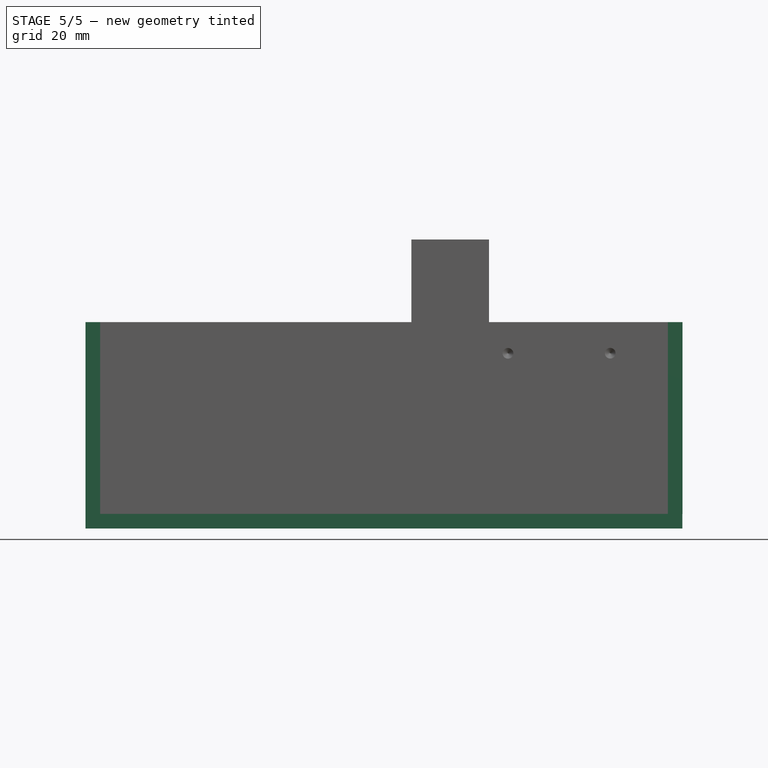
[diagram: stage 5 of 5 — front view after this stage's code; geometry added in this stage tinted green]
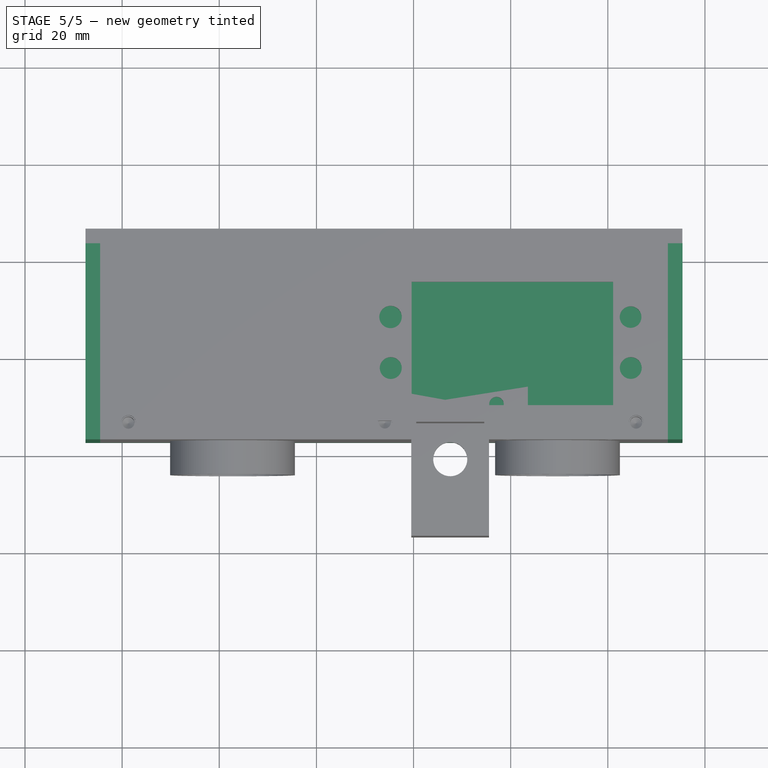
[diagram: stage 5 of 5 — top view after this stage's code; geometry added in this stage tinted green]
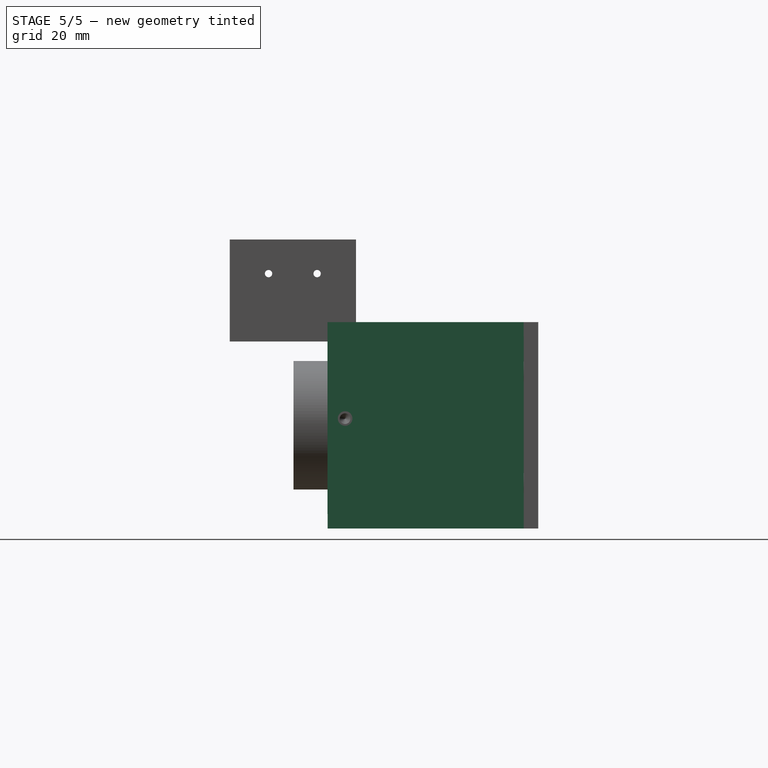
[diagram: stage 5 of 5 — right view after this stage's code; geometry added in this stage tinted green]
FEATURE [Sketcher::SketchObject] Sketch009  label="left_side"
  FullyConstrained = false
  MapMode = 5
  Placement = pos=(-64.5346,-7,4) rot=(0.57735,-0.57735,-0.57735;2.0944rad)
  Support = -> [Pad]
  sketch-geometry (5):
    g0: LineSegment StartX=-30.1692 StartY=0 StartZ=0 EndX=10.2164 EndY=0 EndZ=0
    g1: LineSegment StartX=10.2164 StartY=0 StartZ=0 EndX=10.2164 EndY=-39.5 EndZ=0
    g2: LineSegment StartX=10.2164 StartY=-39.5 StartZ=0 EndX=-30.1692 EndY=-39.5 EndZ=0
    g3: LineSegment StartX=-30.1692 StartY=-39.5 StartZ=0 EndX=-30.1692 EndY=0 EndZ=0
    g4: Circle CenterX=6.71499 CenterY=-19.0153 CenterZ=0 NormalX=0 NormalY=0 NormalZ=1 AngleXU=0 Radius=1.5
  constraints (11):
    c: Coincident(g0,g1)
    c: Coincident(g1,g2)
    c: Coincident(g2,g3)
    c: Coincident(g3,g0)
    c: Horizontal(g0)
    c: Horizontal(g2)
    c: Vertical(g1)
    c: Vertical(g3)
    c: PointOnObject(g0,g-1)
    c: Distance(g3) = 39.5
    c: Diameter(g4) = 3
FEATURE [PartDesign::Pad] Pad004
  BaseFeature = -> Pad
  Direction = (-1,-1e-16,-1e-16)
  Length = 3
  Length2 = 10
  Placement = pos=(40,-7,4) rot=(0,0,1;3.14159rad)
  Profile = -> Sketch009
  ReferenceAxis = -> Sketch009 [N_Axis]
  Type = 0
FEATURE [Sketcher::SketchObject] Sketch010  label="right_side"
  FullyConstrained = false
  MapMode = 5
  Placement = pos=(52.3642,-7,4) rot=(0.57735,0.57735,0.57735;2.0944rad)
  Support = -> [Pad004]
  sketch-geometry (5):
    g0: LineSegment StartX=-10.2213 StartY=0 StartZ=0 EndX=30.1645 EndY=0 EndZ=0
    g1: LineSegment StartX=30.1645 StartY=0 StartZ=0 EndX=30.1645 EndY=-39.5 EndZ=0
    g2: LineSegment StartX=30.1645 StartY=-39.5 StartZ=0 EndX=-10.2213 EndY=-39.5 EndZ=0
    g3: LineSegment StartX=-10.2213 StartY=-39.5 StartZ=0 EndX=-10.2213 EndY=0 EndZ=0
    g4: Circle CenterX=-6.60402 CenterY=-19.8498 CenterZ=0 NormalX=0 NormalY=0 NormalZ=1 AngleXU=0 Radius=1.5
  constraints (11):
    c: Coincident(g0,g1)
    c: Coincident(g1,g2)
    c: Coincident(g2,g3)
    c: Coincident(g3,g0)
    c: Horizontal(g0)
    c: Horizontal(g2)
    c: Vertical(g1)
    c: Vertical(g3)
    c: PointOnObject(g0,g-1)
    c: Distance(g3) = 39.5
    c: Diameter(g4) = 3
FEATURE [Sketcher::SketchObject] Sketch020  label="back_krishka001"
  FullyConstrained = false
  MapMode = 5
  Placement = pos=(40,23.1692,4) rot=(0,0.707107,0.707107;3.14159rad)
  sketch-geometry (4):
    g0: LineSegment StartX=-15.3518 StartY=0 StartZ=0 EndX=107.535 EndY=0 EndZ=0
    g1: LineSegment StartX=107.535 StartY=0 StartZ=0 EndX=107.535 EndY=-42.4994 EndZ=0
    g2: LineSegment StartX=107.535 StartY=-42.4994 StartZ=0 EndX=-15.3518 EndY=-42.4994 EndZ=0
    g3: LineSegment StartX=-15.3518 StartY=-42.4994 StartZ=0 EndX=-15.3518 EndY=0 EndZ=0
  constraints (9):
    c: Coincident(g0,g1)
    c: Coincident(g1,g2)
    c: Coincident(g2,g3)
    c: Coincident(g3,g0)
    c: Horizontal(g0)
    c: Horizontal(g2)
    c: Vertical(g1)
    c: Vertical(g3)
    c: PointOnObject(g0,g-1)
FEATURE [PartDesign::Pad] Pad008
  BaseFeature = -> Pad004
  Direction = (1,1e-16,1e-16)
  Length = 3
  Length2 = 10
  Placement = pos=(40,-7,4) rot=(0,0,1;3.14159rad)
  Profile = -> Sketch010
  ReferenceAxis = -> Sketch010 [N_Axis]
  Type = 0
FEATURE [Sketcher::SketchObject] Sketch012  label="type-c_socket"
  AttachmentOffset = pos=(0,-2.5,0) rot=(0,0,1;0rad)
  FullyConstrained = false
  MapMode = 5
  Placement = pos=(-67.5346,-7,1.5) rot=(0.57735,-0.57735,-0.57735;2.0944rad)
  Support = -> [Pad008]
  sketch-geometry (4):
    g0: ArcOfCircle CenterX=-23.0281 CenterY=-13.0762 CenterZ=0 NormalX=0 NormalY=0 NormalZ=1 AngleXU=0 Radius=4.75 StartAngle=1e-16 EndAngle=3.14159
    g1: ArcOfCircle CenterX=-23.0281 CenterY=-25.0762 CenterZ=0 NormalX=0 NormalY=0 NormalZ=1 AngleXU=0 Radius=4.75 StartAngle=3.14159 EndAngle=6.28319
    g2: LineSegment StartX=-27.7781 StartY=-13.0762 StartZ=0 EndX=-27.7781 EndY=-25.0762 EndZ=0
    g3: LineSegment StartX=-18.2781 StartY=-25.0762 StartZ=0 EndX=-18.2781 EndY=-13.0762 EndZ=0
  constraints (8):
    c: Tangent(g0,g2) = -1.5708
    c: Tangent(g2,g1) = -1.5708
    c: Tangent(g1,g3) = -1.5708
    c: Tangent(g3,g0) = -1.5708
    c: Equal(g0,g1)
    c: Vertical(g2)
    c: Distance(g1,g1) = 9.5
    c: Distance(g0,g1) = 12
FEATURE [Sketcher::SketchObject] Sketch023
  FullyConstrained = false
  MapMode = 5
  Placement = pos=(40,-7,-35.5) rot=(0,1,0;3.14159rad)
  sketch-geometry (4):
    g0: LineSegment StartX=-15.3625 StartY=30.1691 StartZ=0 EndX=107.534 EndY=30.1691 EndZ=0
    g1: LineSegment StartX=107.534 StartY=30.1691 StartZ=0 EndX=107.534 EndY=-10.2164 EndZ=0
    g2: LineSegment StartX=107.534 StartY=-10.2164 StartZ=0 EndX=-15.3625 EndY=-10.2164 EndZ=0
    g3: LineSegment StartX=-15.3625 StartY=-10.2164 StartZ=0 EndX=-15.3625 EndY=30.1691 EndZ=0
  constraints (8):
    c: Coincident(g0,g1)
    c: Coincident(g1,g2)
    c: Coincident(g2,g3)
    c: Coincident(g3,g0)
    c: Horizontal(g0)
    c: Horizontal(g2)
    c: Vertical(g1)
    c: Vertical(g3)
FEATURE [PartDesign::Pad] Pad009
  Direction = (-1e-16,1e-16,-1)
  Length = 3
  Length2 = 10
  Placement = pos=(40,-7,-35.5) rot=(0,1,0;3.14159rad)
  Profile = -> Sketch023
  ReferenceAxis = -> Sketch023 [N_Axis]
  Type = 0
FEATURE [Sketcher::SketchObject] Sketch035  label="top_holes002"
  FullyConstrained = false
  MapMode = 5
  Placement = pos=(-3.2e-15,-10.2188,-35.4819) rot=(1,0,0;3.14159rad)
  Support = -> [Hole013]
  sketch-geometry (2):
    g0: Circle CenterX=-52.1056 CenterY=3.37993 CenterZ=0 NormalX=0 NormalY=0 NormalZ=1 AngleXU=0 Radius=1.25
    g1: Circle CenterX=44.2504 CenterY=3.77716 CenterZ=0 NormalX=0 NormalY=0 NormalZ=1 AngleXU=0 Radius=1.25
  constraints (2):
    c: Diameter(g0) = 2.5
    c: Diameter(g1) = 2.5
FEATURE [PartDesign::Pocket] Pocket
  BaseFeature = -> Pad008
  Direction = (1,1e-16,1e-16)
  Length = 5
  Length2 = 5
  Placement = pos=(40,-7,4) rot=(0,0,1;3.14159rad)
  Profile = -> Sketch012
  ReferenceAxis = -> Sketch012 [N_Axis]
  Type = 0
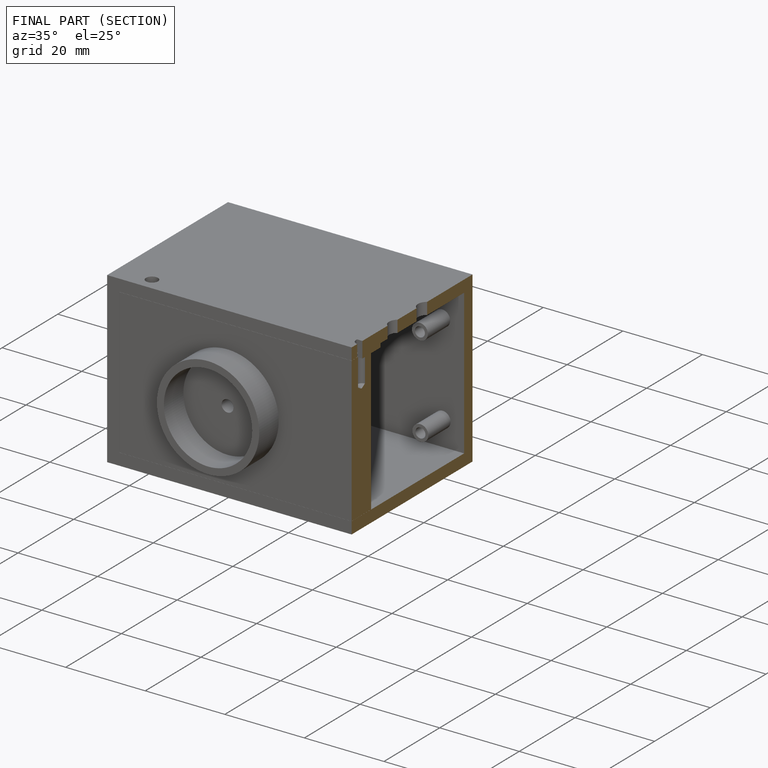
[diagram: finished part — half-section view (interior)]
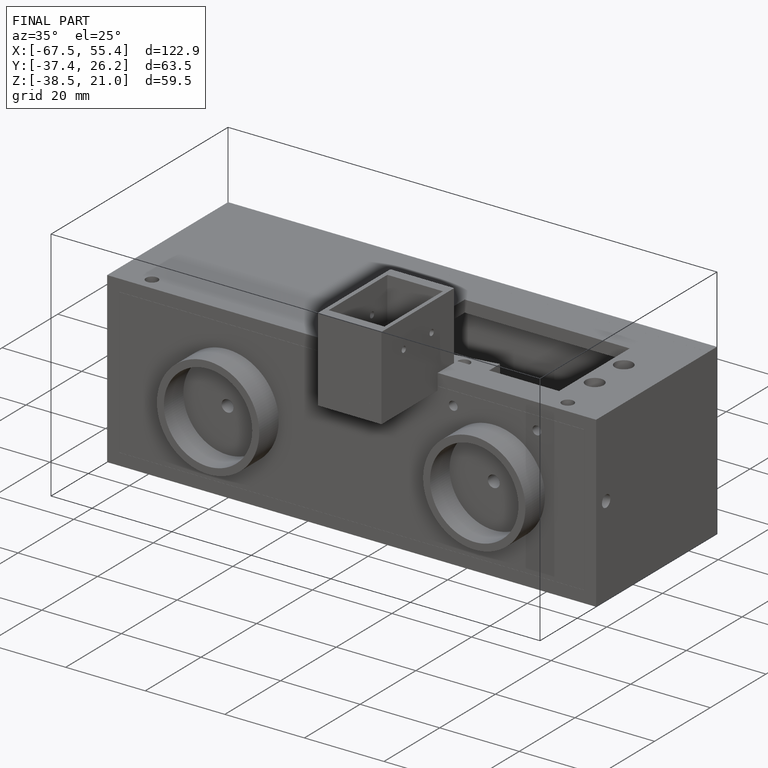
[diagram: finished part — iso view with bounding-box wireframe]
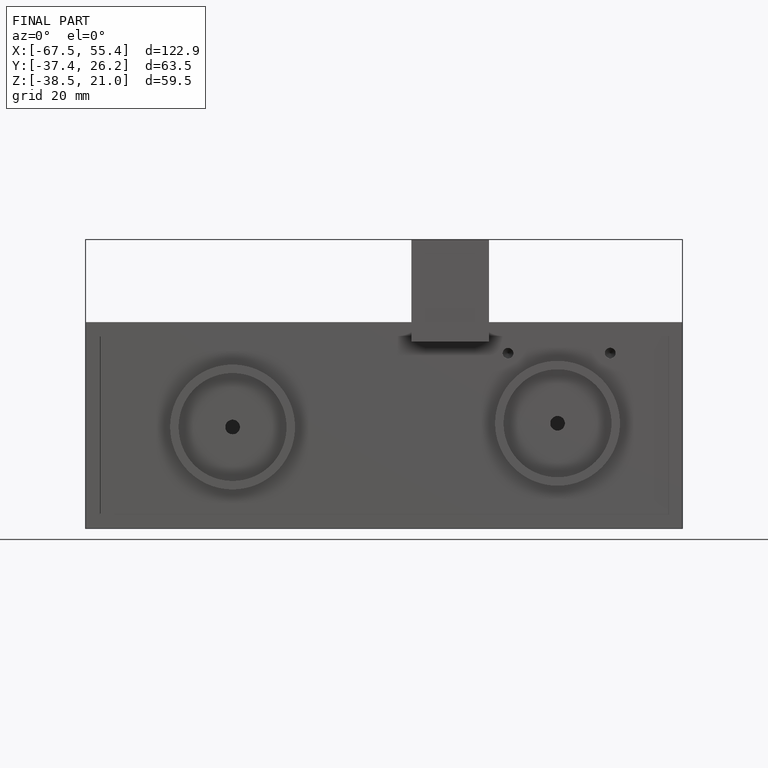
[diagram: finished part — front view with bounding-box wireframe]
